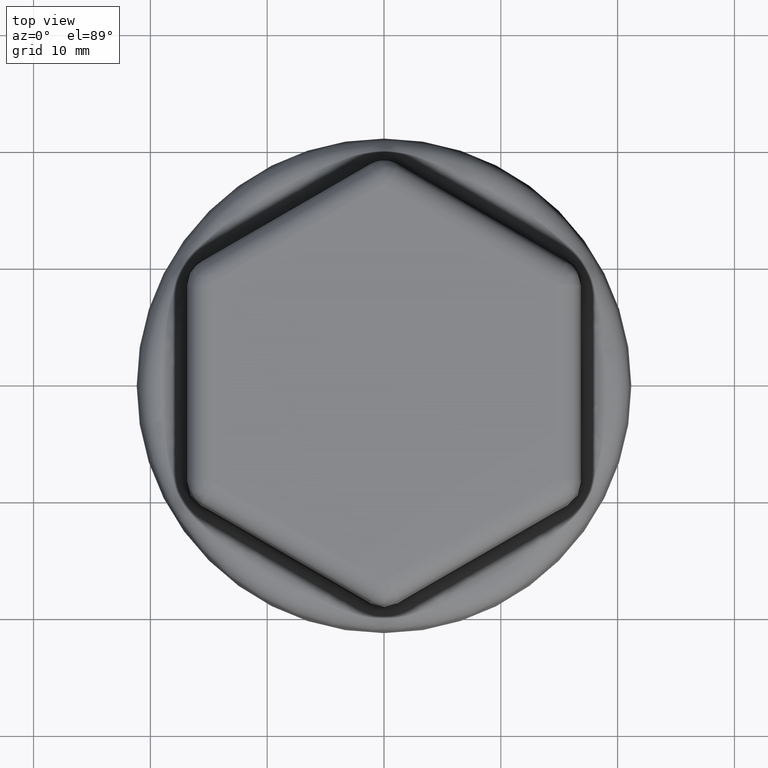
[diagram: clean part render]
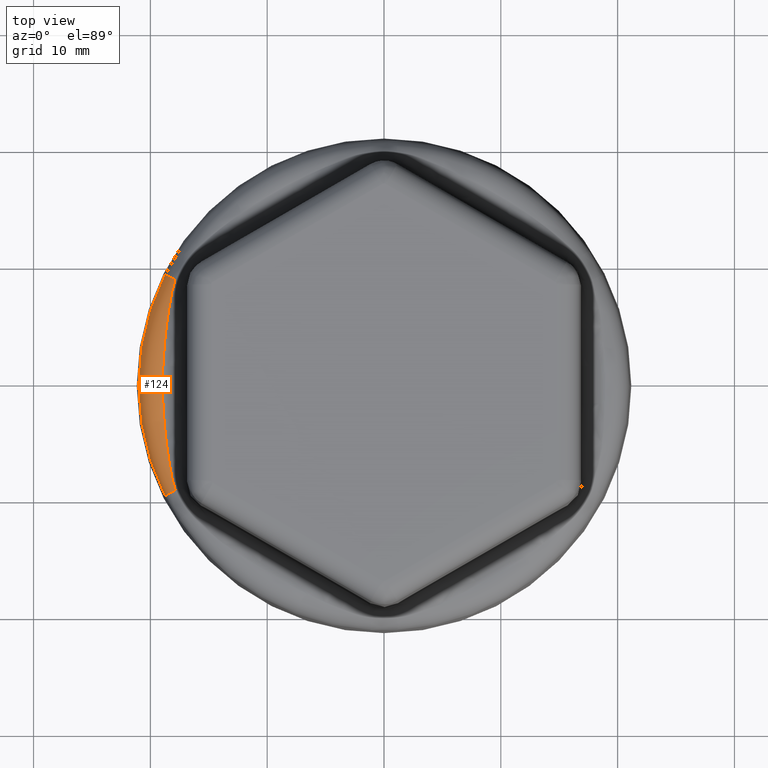
[diagram: same view with one face highlighted and labeled with its STEP entity id]
A machine part, top view. The second image highlights one B-rep face of the part: STEP entity #124.
In plain terms, the highlighted toroidal blend (fillet) surface has major radius 18.9973 mm and minor (blend) radius 2 mm.
Its self-contained STEP definition (entity closure, byte-faithful):
#124 = ADVANCED_FACE( '', ( #300 ), #301, .T. );
#300 = FACE_OUTER_BOUND( '', #1503, .T. );
#301 = TOROIDAL_SURFACE( '', #1504, 18.9972553080042, 2.00000000000000 );
#1503 = EDGE_LOOP( '', ( #4736, #4737, #4738, #4739, #4740, #4741, #4742, #4743 ) );
#1504 = AXIS2_PLACEMENT_3D( '', #4744, #4745, #4746 );
#4736 = ORIENTED_EDGE( '', *, *, #5328, .T. );
#4737 = ORIENTED_EDGE( '', *, *, #5329, .T. );
#4738 = ORIENTED_EDGE( '', *, *, #5330, .T. );
#4739 = ORIENTED_EDGE( '', *, *, #5331, .F. );
#4740 = ORIENTED_EDGE( '', *, *, #5332, .T. );
#4741 = ORIENTED_EDGE( '', *, *, #5333, .T. );
#4742 = ORIENTED_EDGE( '', *, *, #5324, .F. );
#4743 = ORIENTED_EDGE( '', *, *, #5334, .F. );
#4744 = CARTESIAN_POINT( '', ( 0.000000000000000, 0.000000000000000, 3.30000000000000 ) );
#4745 = DIRECTION( '', ( 0.000000000000000, 0.000000000000000, 1.00000000000000 ) );
#4746 = DIRECTION( '', ( 1.00000000000000, 0.000000000000000, 0.000000000000000 ) );
#5324 = EDGE_CURVE( '', #5709, #5710, #5711, .T. );
#5328 = EDGE_CURVE( '', #5717, #5718, #5719, .F. );
#5329 = EDGE_CURVE( '', #5718, #5720, #5721, .T. );
#5330 = EDGE_CURVE( '', #5720, #5722, #5723, .T. );
#5331 = EDGE_CURVE( '', #5724, #5722, #5725, .T. );
#5332 = EDGE_CURVE( '', #5724, #5726, #5727, .T. );
#5333 = EDGE_CURVE( '', #5726, #5710, #5728, .T. );
#5334 = EDGE_CURVE( '', #5717, #5709, #5729, .T. );
#5709 = VERTEX_POINT( '', #6691 );
#5710 = VERTEX_POINT( '', #6692 );
#5711 = CIRCLE( '', #6693, 2.00000000000000 );
#5717 = VERTEX_POINT( '', #6731 );
#5718 = VERTEX_POINT( '', #6732 );
#5719 = CIRCLE( '', #6733, 2.00000000000000 );
#5720 = VERTEX_POINT( '', #6734 );
#5721 = B_SPLINE_CURVE_WITH_KNOTS( '', 3, ( #6735, #6736, #6737, #6738, #6739, #6740, #6741 ), .UNSPECIFIED., .F., .F., ( 4, 2, 1, 4 ), ( 0.000000000000000, 0.000522192577417750, 0.000783288866126622, 0.00104438515483549 ), .UNSPECIFIED. );
#5722 = VERTEX_POINT( '', #6742 );
#5723 = B_SPLINE_CURVE_WITH_KNOTS( '', 3, ( #6743, #6744, #6745, #6746, #6747, #6748, #6749, #6750, #6751, #6752, #6753, #6754, #6755, #6756, #6757, #6758, #6759, #6760, #6761, #6762 ), .UNSPECIFIED., .F., .F., ( 4, 1, 1, 1, 2, 2, 2, 2, 2, 2, 1, 4 ), ( 0.000000000000000, 0.000405447048165395, 0.000810894096330791, 0.00121634114449619, 0.00162178819266158, 0.00243268228899237, 0.00324357638532317, 0.00364902343348856, 0.00405447048165396, 0.00486536457798475, 0.00567625867431555, 0.00648715277064634 ), .UNSPECIFIED. );
#5724 = VERTEX_POINT( '', #6763 );
#5725 = CIRCLE( '', #6764, 18.9972553080042 );
#5726 = VERTEX_POINT( '', #6765 );
#5727 = B_SPLINE_CURVE_WITH_KNOTS( '', 3, ( #6766, #6767, #6768, #6769, #6770, #6771, #6772, #6773, #6774, #6775, #6776, #6777, #6778, #6779, #6780, #6781, #6782, #6783, #6784, #6785, #6786 ), .UNSPECIFIED., .F., .F., ( 4, 1, 2, 2, 2, 1, 2, 2, 2, 1, 1, 1, 4 ), ( 0.000000000000000, 0.000811143435117455, 0.00162228687023491, 0.00243343030535236, 0.00324457374046982, 0.00365014545802854, 0.00385293131680791, 0.00405571717558727, 0.00486686061070473, 0.00527243232826346, 0.00567800404582219, 0.00608357576338091, 0.00648914748093964 ), .UNSPECIFIED. );
#5728 = B_SPLINE_CURVE_WITH_KNOTS( '', 3, ( #6787, #6788, #6789, #6790, #6791, #6792, #6793 ), .UNSPECIFIED., .F., .F., ( 4, 1, 2, 4 ), ( 0.000000000000000, 0.000261096288607715, 0.000522192577215430, 0.00104438515443086 ), .UNSPECIFIED. );
#5729 = CIRCLE( '', #6794, 20.9945143775133 );
#6691 = CARTESIAN_POINT( '', ( -18.7401591167461, 9.46446354669141, 3.40467191248589 ) );
#6692 = CARTESIAN_POINT( '', ( -17.8762350140566, 9.02815037954725, 5.01473537503081 ) );
#6693 = AXIS2_PLACEMENT_3D( '', #8208, #8209, #8210 );
#6731 = CARTESIAN_POINT( '', ( -18.7401591167461, -9.46446354669152, 3.40467191248589 ) );
#6732 = CARTESIAN_POINT( '', ( -17.8762350140566, -9.02815037954736, 5.01473537503081 ) );
#6733 = AXIS2_PLACEMENT_3D( '', #8214, #8215, #8216 );
#6734 = CARTESIAN_POINT( '', ( -18.1561667581117, -8.02636274422128, 5.10854424464771 ) );
#6735 = CARTESIAN_POINT( '', ( -17.8762350140566, -9.02815037954735, 5.01473537503080 ) );
#6736 = CARTESIAN_POINT( '', ( -17.9367599277374, -8.86470239368354, 5.02653642016145 ) );
#6737 = CARTESIAN_POINT( '', ( -17.9904669231910, -8.69956698369570, 5.04066252387219 ) );
#6738 = CARTESIAN_POINT( '', ( -18.0605888206409, -8.44918983468408, 5.06444503848579 ) );
#6739 = CARTESIAN_POINT( '', ( -18.1038492115696, -8.28137779344167, 5.08116066416745 ) );
#6740 = CARTESIAN_POINT( '', ( -18.1399615797807, -8.11169714317578, 5.09925152282489 ) );
#6741 = CARTESIAN_POINT( '', ( -18.1561667581117, -8.02636274422127, 5.10854424464776 ) );
#6742 = CARTESIAN_POINT( '', ( -18.9304843963749, -1.59137354385983, 5.30000000000000 ) );
#6743 = CARTESIAN_POINT( '', ( -18.1561667581117, -8.02636274422128, 5.10854424464771 ) );
#6744 = CARTESIAN_POINT( '', ( -18.1813041625747, -7.89399238035347, 5.12295907625311 ) );
#6745 = CARTESIAN_POINT( '', ( -18.2306971151448, -7.62899614217668, 5.14910652779255 ) );
#6746 = CARTESIAN_POINT( '', ( -18.3019687850000, -7.23076675239755, 5.18152218133594 ) );
#6747 = CARTESIAN_POINT( '', ( -18.3702630701924, -6.83182575612337, 5.20815765028764 ) );
#6748 = CARTESIAN_POINT( '', ( -18.4137086073553, -6.56540237787843, 5.22263574320183 ) );
#6749 = CARTESIAN_POINT( '', ( -18.4772445786083, -6.16542689441967, 5.24226201077468 ) );
#6750 = CARTESIAN_POINT( '', ( -18.5174240357829, -5.89832307102855, 5.25257132583490 ) );
#6751 = CARTESIAN_POINT( '', ( -18.5930933909090, -5.36323155542810, 5.26922389633318 ) );
#6752 = CARTESIAN_POINT( '', ( -18.6285834314523, -5.09524368728829, 5.27556287475685 ) );
#6753 = CARTESIAN_POINT( '', ( -18.6780838704118, -4.69260815300523, 5.28300042740963 ) );
#6754 = CARTESIAN_POINT( '', ( -18.6939619069879, -4.55828728727480, 5.28513197553903 ) );
#6755 = CARTESIAN_POINT( '', ( -18.7244412823156, -4.28942843437162, 5.28882502711155 ) );
#6756 = CARTESIAN_POINT( '', ( -18.7390437254860, -4.15487974129933, 5.29038657670826 ) );
#6757 = CARTESIAN_POINT( '', ( -18.7808836750518, -3.75097932406474, 5.29438081881603 ) );
#6758 = CARTESIAN_POINT( '', ( -18.8061384207291, -3.48151488264856, 5.29612814702573 ) );
#6759 = CARTESIAN_POINT( '', ( -18.8511880468376, -2.94218013353216, 5.29852387714489 ) );
#6760 = CARTESIAN_POINT( '', ( -18.8907778743077, -2.40243951838918, 5.29981936383902 ) );
#6761 = CARTESIAN_POINT( '', ( -18.9191549358871, -1.86186941622367, 5.30000000000000 ) );
#6762 = CARTESIAN_POINT( '', ( -18.9304843963749, -1.59137354385983, 5.30000000000000 ) );
#6763 = CARTESIAN_POINT( '', ( -18.9304843963749, 1.59137354385982, 5.30000000000000 ) );
#6764 = AXIS2_PLACEMENT_3D( '', #8217, #8218, #8219 );
#6765 = CARTESIAN_POINT( '', ( -18.1561667580364, 8.02636274461791, 5.10854424460452 ) );
#6766 = CARTESIAN_POINT( '', ( -18.9304843963749, 1.59137354385982, 5.30000000000000 ) );
#6767 = CARTESIAN_POINT( '', ( -18.9191549181607, 1.86186983944937, 5.30000000000000 ) );
#6768 = CARTESIAN_POINT( '', ( -18.8907823480145, 2.40233350472379, 5.29981879909327 ) );
#6769 = CARTESIAN_POINT( '', ( -18.8512192912943, 2.94175410251154, 5.29852488637557 ) );
#6770 = CARTESIAN_POINT( '', ( -18.8062139758490, 3.48066218448195, 5.29613281582899 ) );
#6771 = CARTESIAN_POINT( '', ( -18.7809901430863, 3.74985997164986, 5.29438858429579 ) );
#6772 = CARTESIAN_POINT( '', ( -18.7252887886756, 4.28775359723988, 5.28907585018196 ) );
#6773 = CARTESIAN_POINT( '', ( -18.6948112028467, 4.55644944408457, 5.28550887194038 ) );
#6774 = CARTESIAN_POINT( '', ( -18.6453239371291, 4.95912570434674, 5.27808058490861 ) );
#6775 = CARTESIAN_POINT( '', ( -18.6196380283351, 5.16037197189622, 5.27384420054009 ) );
#6776 = CARTESIAN_POINT( '', ( -18.5925746316524, 5.36148223540591, 5.26866237887986 ) );
#6777 = CARTESIAN_POINT( '', ( -18.5742305476599, 5.49552572603934, 5.26497743673022 ) );
#6778 = CARTESIAN_POINT( '', ( -18.5649068183833, 5.56253783422392, 5.26301969721981 ) );
#6779 = CARTESIAN_POINT( '', ( -18.5175544406308, 5.89745412044464, 5.25260466677470 ) );
#6780 = CARTESIAN_POINT( '', ( -18.4773307091182, 6.16487336287414, 5.24228691984252 ) );
#6781 = CARTESIAN_POINT( '', ( -18.4137416425720, 6.56520006121383, 5.22264679458890 ) );
#6782 = CARTESIAN_POINT( '', ( -18.3702651790943, 6.83181683668198, 5.20815880119613 ) );
#6783 = CARTESIAN_POINT( '', ( -18.3019427616798, 7.23091671837083, 5.18151110772262 ) );
#6784 = CARTESIAN_POINT( '', ( -18.2306665003599, 7.62916295100584, 5.14909056999073 ) );
#6785 = CARTESIAN_POINT( '', ( -18.1812899860500, 7.89406703212811, 5.12295094684732 ) );
#6786 = CARTESIAN_POINT( '', ( -18.1561667580364, 8.02636274461791, 5.10854424460452 ) );
#6787 = CARTESIAN_POINT( '', ( -18.1561667580364, 8.02636274461791, 5.10854424460452 ) );
#6788 = CARTESIAN_POINT( '', ( -18.1399615797111, 8.11169714353929, 5.09925152278351 ) );
#6789 = CARTESIAN_POINT( '', ( -18.1038494372028, 8.28137786998679, 5.08116080490660 ) );
#6790 = CARTESIAN_POINT( '', ( -18.0605888205801, 8.44918983491173, 5.06444503846355 ) );
#6791 = CARTESIAN_POINT( '', ( -17.9904669231492, 8.69956698382427, 5.04066252386118 ) );
#6792 = CARTESIAN_POINT( '', ( -17.9367599277138, 8.86470239374721, 5.02653642015688 ) );
#6793 = CARTESIAN_POINT( '', ( -17.8762350140566, 9.02815037954723, 5.01473537503084 ) );
#6794 = AXIS2_PLACEMENT_3D( '', #8220, #8221, #8222 );
#8208 = CARTESIAN_POINT( '', ( -16.9573623305506, 8.56408617588093, 3.30000000000000 ) );
#8209 = DIRECTION( '', ( 0.450806500045962, 0.892621700115066, 7.66427199603264E-016 ) );
#8210 = DIRECTION( '', ( -0.892621700115066, 0.450806500045962, 0.000000000000000 ) );
#8214 = CARTESIAN_POINT( '', ( -16.9573623305506, -8.56408617588103, 3.30000000000000 ) );
#8215 = DIRECTION( '', ( 0.450806500045968, -0.892621700115063, 3.91792180333811E-015 ) );
#8216 = DIRECTION( '', ( 0.892621700115063, 0.450806500045968, 0.000000000000000 ) );
#8217 = CARTESIAN_POINT( '', ( 0.000000000000000, 0.000000000000000, 5.30000000000000 ) );
#8218 = DIRECTION( '', ( 0.000000000000000, 0.000000000000000, 1.00000000000000 ) );
#8219 = DIRECTION( '', ( 1.00000000000000, 0.000000000000000, 0.000000000000000 ) );
#8220 = CARTESIAN_POINT( '', ( 0.000000000000000, 0.000000000000000, 3.40467191248589 ) );
#8221 = DIRECTION( '', ( 0.000000000000000, 0.000000000000000, -1.00000000000000 ) );
#8222 = DIRECTION( '', ( -1.00000000000000, 0.000000000000000, 0.000000000000000 ) );